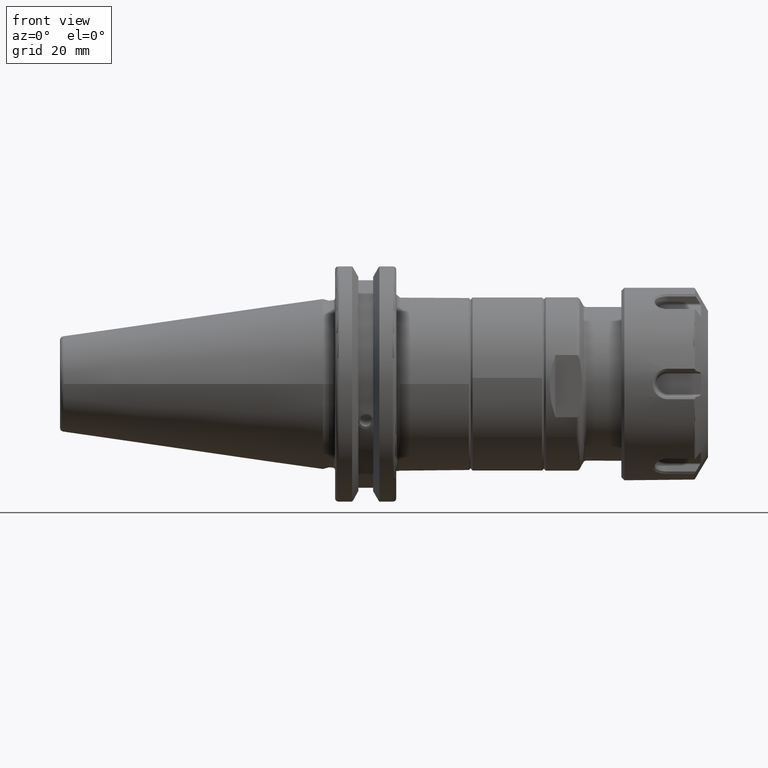
[diagram: clean part render]
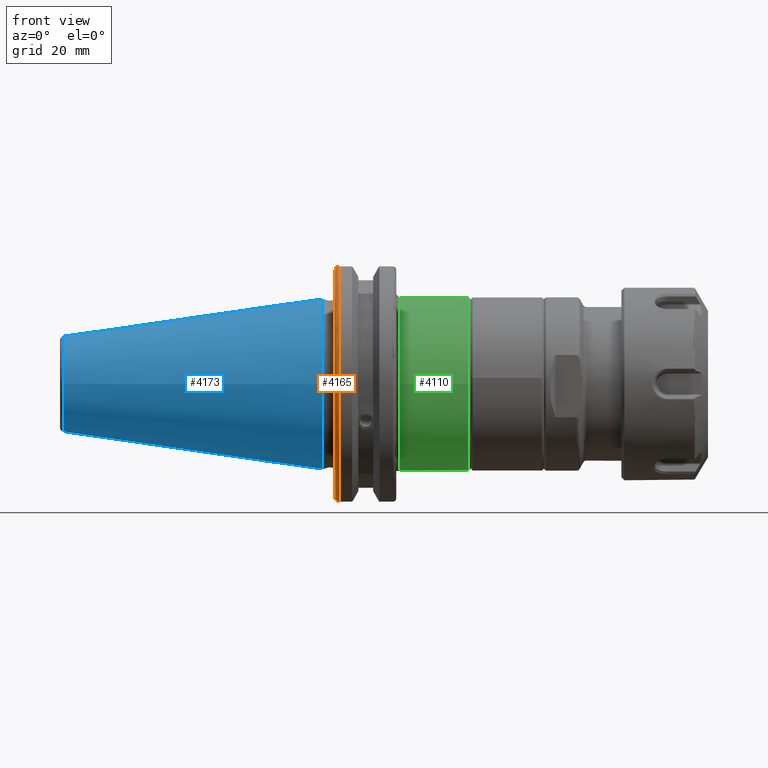
[diagram: same view with three faces highlighted in distinct colors, each labeled with its STEP entity id]
A machine part, front view with three faces highlighted in distinct colors.
Their STEP definitions:

[orange] entity #4165 — the highlighted toroidal blend (fillet) surface has major radius 30.75 mm and minor (blend) radius 1 mm.
#208=B_SPLINE_CURVE_WITH_KNOTS('',3,(#6873,#6874,#6875,#6876,#6877,#6878),
 .UNSPECIFIED.,.F.,.F.,(4,2,4),(0.0977210450333167,0.111963554372601,0.150804064902975),
 .UNSPECIFIED.);
#209=B_SPLINE_CURVE_WITH_KNOTS('',3,(#6899,#6900,#6901,#6902,#6903,#6904),
 .UNSPECIFIED.,.F.,.F.,(4,2,4),(0.452741154494498,0.491581665024872,0.505824174364157),
 .UNSPECIFIED.);
#210=B_SPLINE_CURVE_WITH_KNOTS('',3,(#6908,#6909,#6910,#6911,#6912,#6913,
#6914,#6915),.UNSPECIFIED.,.F.,.F.,(4,2,2,4),(-0.104180282751877,-0.0729784742461442,
-0.0343524753874977,0.),.UNSPECIFIED.);
#211=B_SPLINE_CURVE_WITH_KNOTS('',3,(#6918,#6919,#6920,#6921,#6922,#6923,
#6924,#6925),.UNSPECIFIED.,.F.,.F.,(4,2,2,4),(0.,0.0343524753874981,0.0729784742461436,
0.104180282751876),.UNSPECIFIED.);
#284=TOROIDAL_SURFACE('',#4590,30.75,1.);
#593=FACE_OUTER_BOUND('',#868,.T.);
#868=EDGE_LOOP('',(#3170,#3171,#3172,#3173,#3174,#3175));
#1621=CIRCLE('',#4575,30.75);
#1628=CIRCLE('',#4591,31.75);
#1901=VERTEX_POINT('',#6725);
#1902=VERTEX_POINT('',#6726);
#1939=VERTEX_POINT('',#6872);
#1945=VERTEX_POINT('',#6897);
#1946=VERTEX_POINT('',#6907);
#1947=VERTEX_POINT('',#6916);
#2348=EDGE_CURVE('',#1901,#1902,#1621,.T.);
#2395=EDGE_CURVE('',#1939,#1901,#208,.T.);
#2405=EDGE_CURVE('',#1902,#1945,#209,.T.);
#2407=EDGE_CURVE('',#1945,#1946,#210,.T.);
#2408=EDGE_CURVE('',#1946,#1947,#1628,.T.);
#2409=EDGE_CURVE('',#1947,#1939,#211,.T.);
#3170=ORIENTED_EDGE('',*,*,#2407,.T.);
#3171=ORIENTED_EDGE('',*,*,#2408,.T.);
#3172=ORIENTED_EDGE('',*,*,#2409,.T.);
#3173=ORIENTED_EDGE('',*,*,#2395,.T.);
#3174=ORIENTED_EDGE('',*,*,#2348,.T.);
#3175=ORIENTED_EDGE('',*,*,#2405,.T.);
#4165=ADVANCED_FACE('',(#593),#284,.T.);
#4575=AXIS2_PLACEMENT_3D('',#6727,#5274,#5275);
#4590=AXIS2_PLACEMENT_3D('',#6906,#5342,#5343);
#4591=AXIS2_PLACEMENT_3D('',#6917,#5344,#5345);
#5274=DIRECTION('center_axis',(1.,0.,0.));
#5275=DIRECTION('ref_axis',(0.,-1.,1.60812264967664E-16));
#5342=DIRECTION('center_axis',(1.,0.,0.));
#5343=DIRECTION('ref_axis',(0.,0.,-1.));
#5344=DIRECTION('center_axis',(-1.,0.,0.));
#5345=DIRECTION('ref_axis',(0.,-1.,1.60812264967664E-16));
#6725=CARTESIAN_POINT('',(3.175,-8.18999999999999,29.6392712461019));
#6726=CARTESIAN_POINT('',(3.175,-8.19,-29.6392712461019));
#6727=CARTESIAN_POINT('Origin',(3.175,0.,0.));
#6872=CARTESIAN_POINT('',(3.31912772509028,-8.19,30.1755016258903));
#6873=CARTESIAN_POINT('Ctrl Pts',(3.31912772509028,-8.19,30.1755016258903));
#6874=CARTESIAN_POINT('Ctrl Pts',(3.29318362718666,-8.19,30.131014531546));
#6875=CARTESIAN_POINT('Ctrl Pts',(3.27103565282437,-8.19,30.0852355256475));
#6876=CARTESIAN_POINT('Ctrl Pts',(3.20451443291695,-8.19,29.9212724384851));
#6877=CARTESIAN_POINT('Ctrl Pts',(3.175,-8.19,29.7687396145364));
#6878=CARTESIAN_POINT('Ctrl Pts',(3.175,-8.19,29.6392712461019));
#6897=CARTESIAN_POINT('',(3.31912772509028,-8.19,-30.1755016258903));
#6899=CARTESIAN_POINT('Ctrl Pts',(3.175,-8.19,-29.6392712461018));
#6900=CARTESIAN_POINT('Ctrl Pts',(3.175,-8.19,-29.7687396145364));
#6901=CARTESIAN_POINT('Ctrl Pts',(3.20451443291695,-8.19,-29.9212724384851));
#6902=CARTESIAN_POINT('Ctrl Pts',(3.27103565282437,-8.19,-30.0852355256475));
#6903=CARTESIAN_POINT('Ctrl Pts',(3.29318362718666,-8.19,-30.131014531546));
#6904=CARTESIAN_POINT('Ctrl Pts',(3.31912772509028,-8.19,-30.1755016258903));
#6906=CARTESIAN_POINT('Origin',(4.175,0.,0.));
#6907=CARTESIAN_POINT('',(4.175,-8.67204822802685,-30.5427254764662));
#6908=CARTESIAN_POINT('Ctrl Pts',(3.31912772509028,-8.19,-30.1755016258903));
#6909=CARTESIAN_POINT('Ctrl Pts',(3.36755369570113,-8.27036828330781,-30.2367261024977));
#6910=CARTESIAN_POINT('Ctrl Pts',(3.43232973376814,-8.34909446036477,-30.2966996242308));
#6911=CARTESIAN_POINT('Ctrl Pts',(3.58532758094931,-8.48862804755884,-30.4029961692546));
#6912=CARTESIAN_POINT('Ctrl Pts',(3.70655857052286,-8.56482138642532,-30.4610401774263));
#6913=CARTESIAN_POINT('Ctrl Pts',(3.92668295662254,-8.6471881193939,-30.5237870709558));
#6914=CARTESIAN_POINT('Ctrl Pts',(4.06049174870834,-8.67204822802686,-30.5427254764662));
#6915=CARTESIAN_POINT('Ctrl Pts',(4.175,-8.67204822802686,-30.5427254764662));
#6916=CARTESIAN_POINT('',(4.175,-8.67204822802685,30.5427254764662));
#6917=CARTESIAN_POINT('Origin',(4.175,0.,0.));
#6918=CARTESIAN_POINT('Ctrl Pts',(4.175,-8.67204822802686,30.5427254764662));
#6919=CARTESIAN_POINT('Ctrl Pts',(4.06049174870834,-8.67204822802686,30.5427254764662));
#6920=CARTESIAN_POINT('Ctrl Pts',(3.92668295662254,-8.64718811939389,30.5237870709558));
#6921=CARTESIAN_POINT('Ctrl Pts',(3.70655857052286,-8.56482138642532,30.4610401774263));
#6922=CARTESIAN_POINT('Ctrl Pts',(3.58532758094931,-8.48862804755884,30.4029961692546));
#6923=CARTESIAN_POINT('Ctrl Pts',(3.43232973376814,-8.34909446036478,30.2966996242308));
#6924=CARTESIAN_POINT('Ctrl Pts',(3.36755369570113,-8.2703682833078,30.2367261024977));
#6925=CARTESIAN_POINT('Ctrl Pts',(3.31912772509028,-8.19,30.1755016258903));

[blue] entity #4173 — the highlighted conical surface has half-angle 8.297 deg.
#601=FACE_OUTER_BOUND('',#877,.T.);
#877=EDGE_LOOP('',(#3205,#3206,#3207,#3208,#3209));
#1168=LINE('',#6987,#1408);
#1408=VECTOR('',#5381,17.2484375);
#1631=CIRCLE('',#4600,12.3966635780937);
#1632=CIRCLE('',#4601,12.3966635780937);
#1636=CIRCLE('',#4607,22.225);
#1954=VERTEX_POINT('',#6974);
#1955=VERTEX_POINT('',#6975);
#1958=VERTEX_POINT('',#6985);
#2421=EDGE_CURVE('',#1954,#1955,#1631,.T.);
#2422=EDGE_CURVE('',#1955,#1954,#1632,.T.);
#2426=EDGE_CURVE('',#1958,#1958,#1636,.T.);
#2427=EDGE_CURVE('',#1958,#1955,#1168,.T.);
#3205=ORIENTED_EDGE('',*,*,#2426,.F.);
#3206=ORIENTED_EDGE('',*,*,#2427,.T.);
#3207=ORIENTED_EDGE('',*,*,#2421,.F.);
#3208=ORIENTED_EDGE('',*,*,#2422,.F.);
#3209=ORIENTED_EDGE('',*,*,#2427,.F.);
#4062=CONICAL_SURFACE('',#4606,17.2484375,0.144812498238939);
#4173=ADVANCED_FACE('',(#601),#4062,.T.);
#4600=AXIS2_PLACEMENT_3D('',#6976,#5365,#5366);
#4601=AXIS2_PLACEMENT_3D('',#6977,#5367,#5368);
#4606=AXIS2_PLACEMENT_3D('',#6984,#5377,#5378);
#4607=AXIS2_PLACEMENT_3D('',#6986,#5379,#5380);
#5365=DIRECTION('center_axis',(-1.,0.,0.));
#5366=DIRECTION('ref_axis',(0.,-1.,3.06161699786838E-17));
#5367=DIRECTION('center_axis',(-1.,0.,0.));
#5368=DIRECTION('ref_axis',(0.,-1.,3.06161699786838E-17));
#5377=DIRECTION('center_axis',(1.,0.,0.));
#5378=DIRECTION('ref_axis',(0.,1.,0.));
#5379=DIRECTION('center_axis',(1.,0.,0.));
#5380=DIRECTION('ref_axis',(0.,0.,-1.));
#5381=DIRECTION('',(-0.989532981063282,0.144306893071729,1.76724974695192E-17));
#6974=CARTESIAN_POINT('',(-67.3943068930717,-1.5181534371019E-15,12.3966635780937));
#6975=CARTESIAN_POINT('',(-67.3943068930718,-12.3966635780937,-1.5181534371019E-15));
#6976=CARTESIAN_POINT('Origin',(-67.3943068930717,0.,-1.89769179637738E-15));
#6977=CARTESIAN_POINT('Origin',(-67.3943068930717,0.,-1.89769179637738E-15));
#6984=CARTESIAN_POINT('Origin',(-34.125,0.,0.));
#6985=CARTESIAN_POINT('',(0.,-22.225,-2.72177751110499E-15));
#6986=CARTESIAN_POINT('Origin',(0.,0.,0.));
#6987=CARTESIAN_POINT('',(-34.125,-17.2484375,-2.11232437746682E-15));

[green] entity #4110 — the highlighted cylindrical surface (bore or boss wall) has radius 22.5 mm, axis along (1, 0, 0).
#457=CYLINDRICAL_SURFACE('',#4464,22.5);
#538=FACE_OUTER_BOUND('',#792,.T.);
#792=EDGE_LOOP('',(#2860,#2861,#2862,#2863,#2864,#2865));
#1088=LINE('',#6277,#1328);
#1328=VECTOR('',#5019,22.5);
#1571=CIRCLE('',#4460,22.5);
#1574=CIRCLE('',#4463,22.5);
#1575=CIRCLE('',#4465,22.5);
#1576=CIRCLE('',#4466,22.5);
#1807=VERTEX_POINT('',#6251);
#1808=VERTEX_POINT('',#6252);
#1812=VERTEX_POINT('',#6273);
#1813=VERTEX_POINT('',#6274);
#2217=EDGE_CURVE('',#1807,#1808,#1571,.T.);
#2222=EDGE_CURVE('',#1808,#1807,#1574,.T.);
#2223=EDGE_CURVE('',#1812,#1813,#1575,.T.);
#2224=EDGE_CURVE('',#1813,#1812,#1576,.T.);
#2225=EDGE_CURVE('',#1813,#1807,#1088,.T.);
#2860=ORIENTED_EDGE('',*,*,#2223,.F.);
#2861=ORIENTED_EDGE('',*,*,#2224,.F.);
#2862=ORIENTED_EDGE('',*,*,#2225,.T.);
#2863=ORIENTED_EDGE('',*,*,#2222,.F.);
#2864=ORIENTED_EDGE('',*,*,#2217,.F.);
#2865=ORIENTED_EDGE('',*,*,#2225,.F.);
#4110=ADVANCED_FACE('',(#538),#457,.T.);
#4460=AXIS2_PLACEMENT_3D('',#6253,#5005,#5006);
#4463=AXIS2_PLACEMENT_3D('',#6271,#5011,#5012);
#4464=AXIS2_PLACEMENT_3D('',#6272,#5013,#5014);
#4465=AXIS2_PLACEMENT_3D('',#6275,#5015,#5016);
#4466=AXIS2_PLACEMENT_3D('',#6276,#5017,#5018);
#5005=DIRECTION('center_axis',(-1.,0.,0.));
#5006=DIRECTION('ref_axis',(0.,-1.,-1.22464679914735E-16));
#5011=DIRECTION('center_axis',(-1.,0.,0.));
#5012=DIRECTION('ref_axis',(0.,-1.,-1.22464679914735E-16));
#5013=DIRECTION('center_axis',(1.,0.,0.));
#5014=DIRECTION('ref_axis',(0.,1.,0.));
#5015=DIRECTION('center_axis',(1.,0.,0.));
#5016=DIRECTION('ref_axis',(0.,-1.,0.));
#5017=DIRECTION('center_axis',(1.,0.,0.));
#5018=DIRECTION('ref_axis',(0.,-1.,0.));
#5019=DIRECTION('',(-1.,0.,0.));
#6251=CARTESIAN_POINT('',(20.05,-22.5,-2.75545529808154E-15));
#6252=CARTESIAN_POINT('',(20.05,-2.75545529808154E-15,-22.5));
#6253=CARTESIAN_POINT('Origin',(20.05,0.,0.));
#6271=CARTESIAN_POINT('Origin',(20.05,0.,0.));
#6272=CARTESIAN_POINT('Origin',(28.725,0.,0.));
#6273=CARTESIAN_POINT('',(37.9,22.5,2.75545529808154E-15));
#6274=CARTESIAN_POINT('',(37.9,-22.5,-2.75545529808154E-15));
#6275=CARTESIAN_POINT('Origin',(37.9,0.,0.));
#6276=CARTESIAN_POINT('Origin',(37.9,0.,0.));
#6277=CARTESIAN_POINT('',(28.725,-22.5,-2.75545529808154E-15));